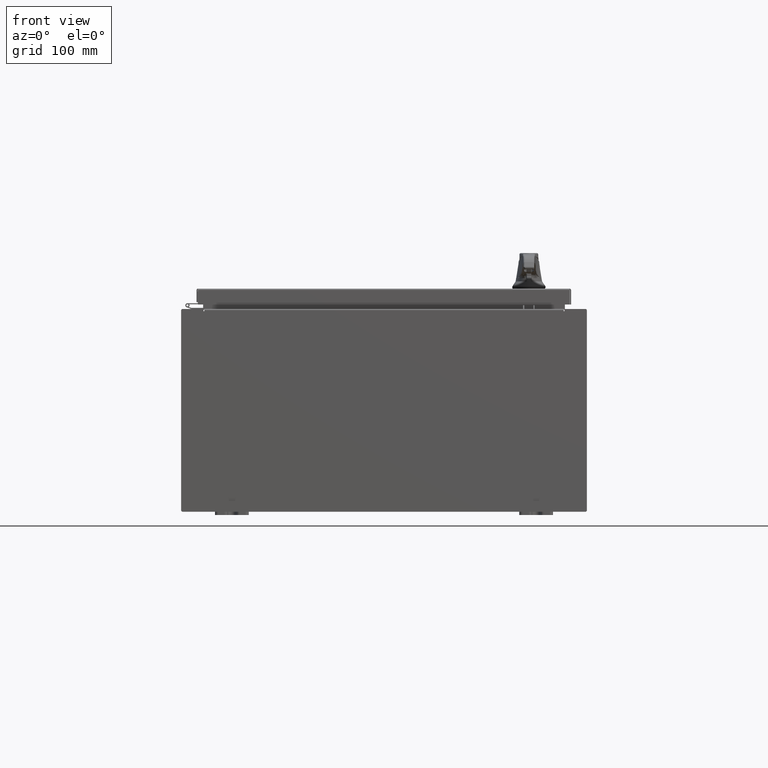
[diagram: clean part render]
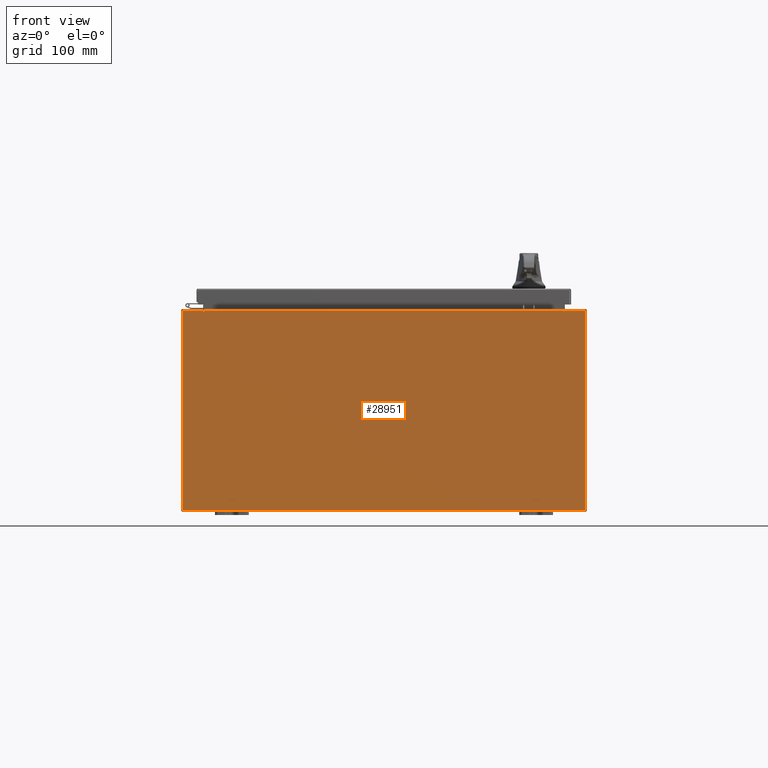
[diagram: same view with one face highlighted and labeled with its STEP entity id]
A machine part, front view. The second image highlights one B-rep face of the part: STEP entity #28951.
In plain terms, the highlighted planar face has unit normal (-0, 1, -0).
Its self-contained STEP definition (entity closure, byte-faithful):
#2431 = VECTOR ( 'NONE', #24925, 39.37007874015748100 ) ;
#2815 = CARTESIAN_POINT ( 'NONE',  ( -11.92530000000000000, 0.0000000000000000000, -5.925299999999999100 ) ) ;
#2841 = EDGE_CURVE ( 'NONE', #70384, #40456, #35301, .T. ) ;
#3446 = CARTESIAN_POINT ( 'NONE',  ( -10.65587500000000200, 0.0000000000000000000, 5.874950000000001000 ) ) ;
#3580 = CARTESIAN_POINT ( 'NONE',  ( 10.65587500000000200, 0.0000000000000000000, 5.874950000000001000 ) ) ;
#4669 = LINE ( 'NONE', #100117, #50600 ) ;
#6735 = EDGE_CURVE ( 'NONE', #27235, #91234, #4669, .T. ) ;
#6995 = ORIENTED_EDGE ( 'NONE', *, *, #26052, .T. ) ;
#7765 = CARTESIAN_POINT ( 'NONE',  ( -10.67455000000000200, 0.0000000000000000000, 5.925300000000000000 ) ) ;
#7888 = DIRECTION ( 'NONE',  ( 0.0000000000000000000, 0.0000000000000000000, 1.000000000000000000 ) ) ;
#9851 = ORIENTED_EDGE ( 'NONE', *, *, #66767, .F. ) ;
#9927 = CARTESIAN_POINT ( 'NONE',  ( 0.0000000000000000000, 0.0000000000000000000, 0.0000000000000000000 ) ) ;
#10290 = CARTESIAN_POINT ( 'NONE',  ( 10.67455000000000200, 0.0000000000000000000, 0.0000000000000000000 ) ) ;
#11707 = DIRECTION ( 'NONE',  ( -0.0000000000000000000, 1.000000000000000000, -0.0000000000000000000 ) ) ;
#12093 = EDGE_CURVE ( 'NONE', #84524, #95071, #75507, .T. ) ;
#12659 = CARTESIAN_POINT ( 'NONE',  ( 10.67455000000000200, 0.0000000000000000000, 5.925300000000001800 ) ) ;
#12751 = DIRECTION ( 'NONE',  ( 0.0000000000000000000, 0.0000000000000000000, -1.000000000000000000 ) ) ;
#13306 = LINE ( 'NONE', #47117, #62100 ) ;
#13392 = CARTESIAN_POINT ( 'NONE',  ( -11.92530000000000000, 0.0000000000000000000, 5.925300000000000000 ) ) ;
#13851 = EDGE_CURVE ( 'NONE', #40456, #114586, #38142, .T. ) ;
#14859 = CARTESIAN_POINT ( 'NONE',  ( 11.92530000000000000, 0.0000000000000000000, 5.925300000000001800 ) ) ;
#17062 = CARTESIAN_POINT ( 'NONE',  ( -10.63720000000000400, -0.0000000000000000000, 0.0000000000000000000 ) ) ;
#19443 = ORIENTED_EDGE ( 'NONE', *, *, #13851, .F. ) ;
#22954 = ORIENTED_EDGE ( 'NONE', *, *, #31479, .T. ) ;
#24682 = ORIENTED_EDGE ( 'NONE', *, *, #90422, .F. ) ;
#24925 = DIRECTION ( 'NONE',  ( 0.0000000000000000000, 0.0000000000000000000, -1.000000000000000000 ) ) ;
#25743 = LINE ( 'NONE', #27357, #80214 ) ;
#26052 = EDGE_CURVE ( 'NONE', #91234, #77533, #42402, .T. ) ;
#26395 = DIRECTION ( 'NONE',  ( 0.0000000000000000000, 0.0000000000000000000, -1.000000000000000000 ) ) ;
#26633 = LINE ( 'NONE', #72061, #99626 ) ;
#27235 = VERTEX_POINT ( 'NONE', #14859 ) ;
#27357 = CARTESIAN_POINT ( 'NONE',  ( -11.92530000000000000, 0.0000000000000000000, 5.925300000000000000 ) ) ;
#27924 = AXIS2_PLACEMENT_3D ( 'NONE', #3580, #67685, #12751 ) ;
#28098 = VECTOR ( 'NONE', #72632, 39.37007874015748100 ) ;
#28413 = DIRECTION ( 'NONE',  ( 0.0000000000000000000, -1.000000000000000000, 0.0000000000000000000 ) ) ;
#28951 = ADVANCED_FACE ( 'NONE', ( #107779 ), #46500, .F. ) ;
#31479 = EDGE_CURVE ( 'NONE', #58081, #114586, #76741, .T. ) ;
#32241 = CARTESIAN_POINT ( 'NONE',  ( 11.92530000000000000, 0.0000000000000000000, -5.925299999999999100 ) ) ;
#34170 = VERTEX_POINT ( 'NONE', #92570 ) ;
#35301 = CIRCLE ( 'NONE', #72482, 0.01867499999999949400 ) ;
#35598 = CARTESIAN_POINT ( 'NONE',  ( -11.92530000000000000, 0.0000000000000000000, -5.925299999999999100 ) ) ;
#36609 = DIRECTION ( 'NONE',  ( -0.0000000000000000000, -0.0000000000000000000, 1.000000000000000000 ) ) ;
#38142 = LINE ( 'NONE', #39997, #105320 ) ;
#38264 = ORIENTED_EDGE ( 'NONE', *, *, #6735, .T. ) ;
#39067 = CARTESIAN_POINT ( 'NONE',  ( -10.63720000000000400, -0.0000000000000000000, 5.874950000000001000 ) ) ;
#39997 = CARTESIAN_POINT ( 'NONE',  ( -10.67455000000000200, -0.0000000000000000000, 0.0000000000000000000 ) ) ;
#40456 = VERTEX_POINT ( 'NONE', #63051 ) ;
#42402 = LINE ( 'NONE', #35598, #112537 ) ;
#44856 = DIRECTION ( 'NONE',  ( -1.000000000000000000, -0.0000000000000000000, -0.0000000000000000000 ) ) ;
#46500 = PLANE ( 'NONE',  #75273 ) ;
#47117 = CARTESIAN_POINT ( 'NONE',  ( -11.92530000000000000, 0.0000000000000000000, 5.925300000000000000 ) ) ;
#50600 = VECTOR ( 'NONE', #83053, 39.37007874015748100 ) ;
#51804 = CIRCLE ( 'NONE', #27924, 0.01867499999999949400 ) ;
#52311 = LINE ( 'NONE', #17062, #73801 ) ;
#55496 = ORIENTED_EDGE ( 'NONE', *, *, #12093, .F. ) ;
#56265 = DIRECTION ( 'NONE',  ( 1.000000000000000000, 0.0000000000000000000, 4.581600452255731000E-017 ) ) ;
#58081 = VERTEX_POINT ( 'NONE', #13392 ) ;
#62100 = VECTOR ( 'NONE', #56265, 39.37007874015748100 ) ;
#63051 = CARTESIAN_POINT ( 'NONE',  ( -10.67455000000000200, 0.0000000000000000000, 5.874950000000001000 ) ) ;
#63476 = ORIENTED_EDGE ( 'NONE', *, *, #115069, .T. ) ;
#66767 = EDGE_CURVE ( 'NONE', #81209, #70384, #52311, .T. ) ;
#67685 = DIRECTION ( 'NONE',  ( -0.0000000000000000000, 1.000000000000000000, -0.0000000000000000000 ) ) ;
#70384 = VERTEX_POINT ( 'NONE', #39067 ) ;
#72018 = DIRECTION ( 'NONE',  ( 0.0000000000000000000, 0.0000000000000000000, -1.000000000000000000 ) ) ;
#72061 = CARTESIAN_POINT ( 'NONE',  ( 10.63720000000000400, 0.0000000000000000000, 0.0000000000000000000 ) ) ;
#72118 = VECTOR ( 'NONE', #112298, 39.37007874015748100 ) ;
#72482 = AXIS2_PLACEMENT_3D ( 'NONE', #3446, #11707, #26395 ) ;
#72632 = DIRECTION ( 'NONE',  ( 1.000000000000000000, 0.0000000000000000000, 4.581600452255731000E-017 ) ) ;
#73394 = EDGE_LOOP ( 'NONE', ( #19443, #94103, #9851, #63476, #87292, #24682, #55496, #115550, #38264, #6995, #83296, #22954 ) ) ;
#73801 = VECTOR ( 'NONE', #72018, 39.37007874015748100 ) ;
#75273 = AXIS2_PLACEMENT_3D ( 'NONE', #9927, #28413, #92413 ) ;
#75449 = CARTESIAN_POINT ( 'NONE',  ( -10.63720000000000400, -1.707404996040164500E-016, 5.912300000000001000 ) ) ;
#75507 = LINE ( 'NONE', #10290, #2431 ) ;
#75845 = CARTESIAN_POINT ( 'NONE',  ( 10.63720000000000400, 0.0000000000000000000, 5.912300000000001000 ) ) ;
#76741 = LINE ( 'NONE', #118570, #28098 ) ;
#77533 = VERTEX_POINT ( 'NONE', #2815 ) ;
#80214 = VECTOR ( 'NONE', #36609, 39.37007874015748100 ) ;
#81209 = VERTEX_POINT ( 'NONE', #90577 ) ;
#83053 = DIRECTION ( 'NONE',  ( 0.0000000000000000000, 0.0000000000000000000, -1.000000000000000000 ) ) ;
#83296 = ORIENTED_EDGE ( 'NONE', *, *, #84151, .T. ) ;
#84151 = EDGE_CURVE ( 'NONE', #77533, #58081, #25743, .T. ) ;
#84524 = VERTEX_POINT ( 'NONE', #12659 ) ;
#87292 = ORIENTED_EDGE ( 'NONE', *, *, #98770, .F. ) ;
#90422 = EDGE_CURVE ( 'NONE', #95071, #34170, #51804, .T. ) ;
#90577 = CARTESIAN_POINT ( 'NONE',  ( -10.63720000000000400, -1.707404996040164500E-016, 5.912300000000001000 ) ) ;
#91234 = VERTEX_POINT ( 'NONE', #32241 ) ;
#92413 = DIRECTION ( 'NONE',  ( 0.0000000000000000000, -0.0000000000000000000, -1.000000000000000000 ) ) ;
#92570 = CARTESIAN_POINT ( 'NONE',  ( 10.63720000000000400, 0.0000000000000000000, 5.874950000000001000 ) ) ;
#94103 = ORIENTED_EDGE ( 'NONE', *, *, #2841, .F. ) ;
#95071 = VERTEX_POINT ( 'NONE', #109891 ) ;
#96379 = LINE ( 'NONE', #75449, #72118 ) ;
#98770 = EDGE_CURVE ( 'NONE', #34170, #102917, #26633, .T. ) ;
#99626 = VECTOR ( 'NONE', #7888, 39.37007874015748100 ) ;
#100117 = CARTESIAN_POINT ( 'NONE',  ( 11.92530000000000000, 0.0000000000000000000, 5.925300000000001800 ) ) ;
#102917 = VERTEX_POINT ( 'NONE', #75845 ) ;
#105320 = VECTOR ( 'NONE', #113828, 39.37007874015748100 ) ;
#107779 = FACE_OUTER_BOUND ( 'NONE', #73394, .T. ) ;
#109891 = CARTESIAN_POINT ( 'NONE',  ( 10.67455000000000200, 0.0000000000000000000, 5.874950000000001000 ) ) ;
#112298 = DIRECTION ( 'NONE',  ( 1.000000000000000000, 0.0000000000000000000, 0.0000000000000000000 ) ) ;
#112537 = VECTOR ( 'NONE', #44856, 39.37007874015748100 ) ;
#113828 = DIRECTION ( 'NONE',  ( 0.0000000000000000000, 0.0000000000000000000, 1.000000000000000000 ) ) ;
#114586 = VERTEX_POINT ( 'NONE', #7765 ) ;
#115069 = EDGE_CURVE ( 'NONE', #81209, #102917, #96379, .T. ) ;
#115550 = ORIENTED_EDGE ( 'NONE', *, *, #116848, .T. ) ;
#116848 = EDGE_CURVE ( 'NONE', #84524, #27235, #13306, .T. ) ;
#118570 = CARTESIAN_POINT ( 'NONE',  ( -11.92530000000000000, 0.0000000000000000000, 5.925300000000000000 ) ) ;